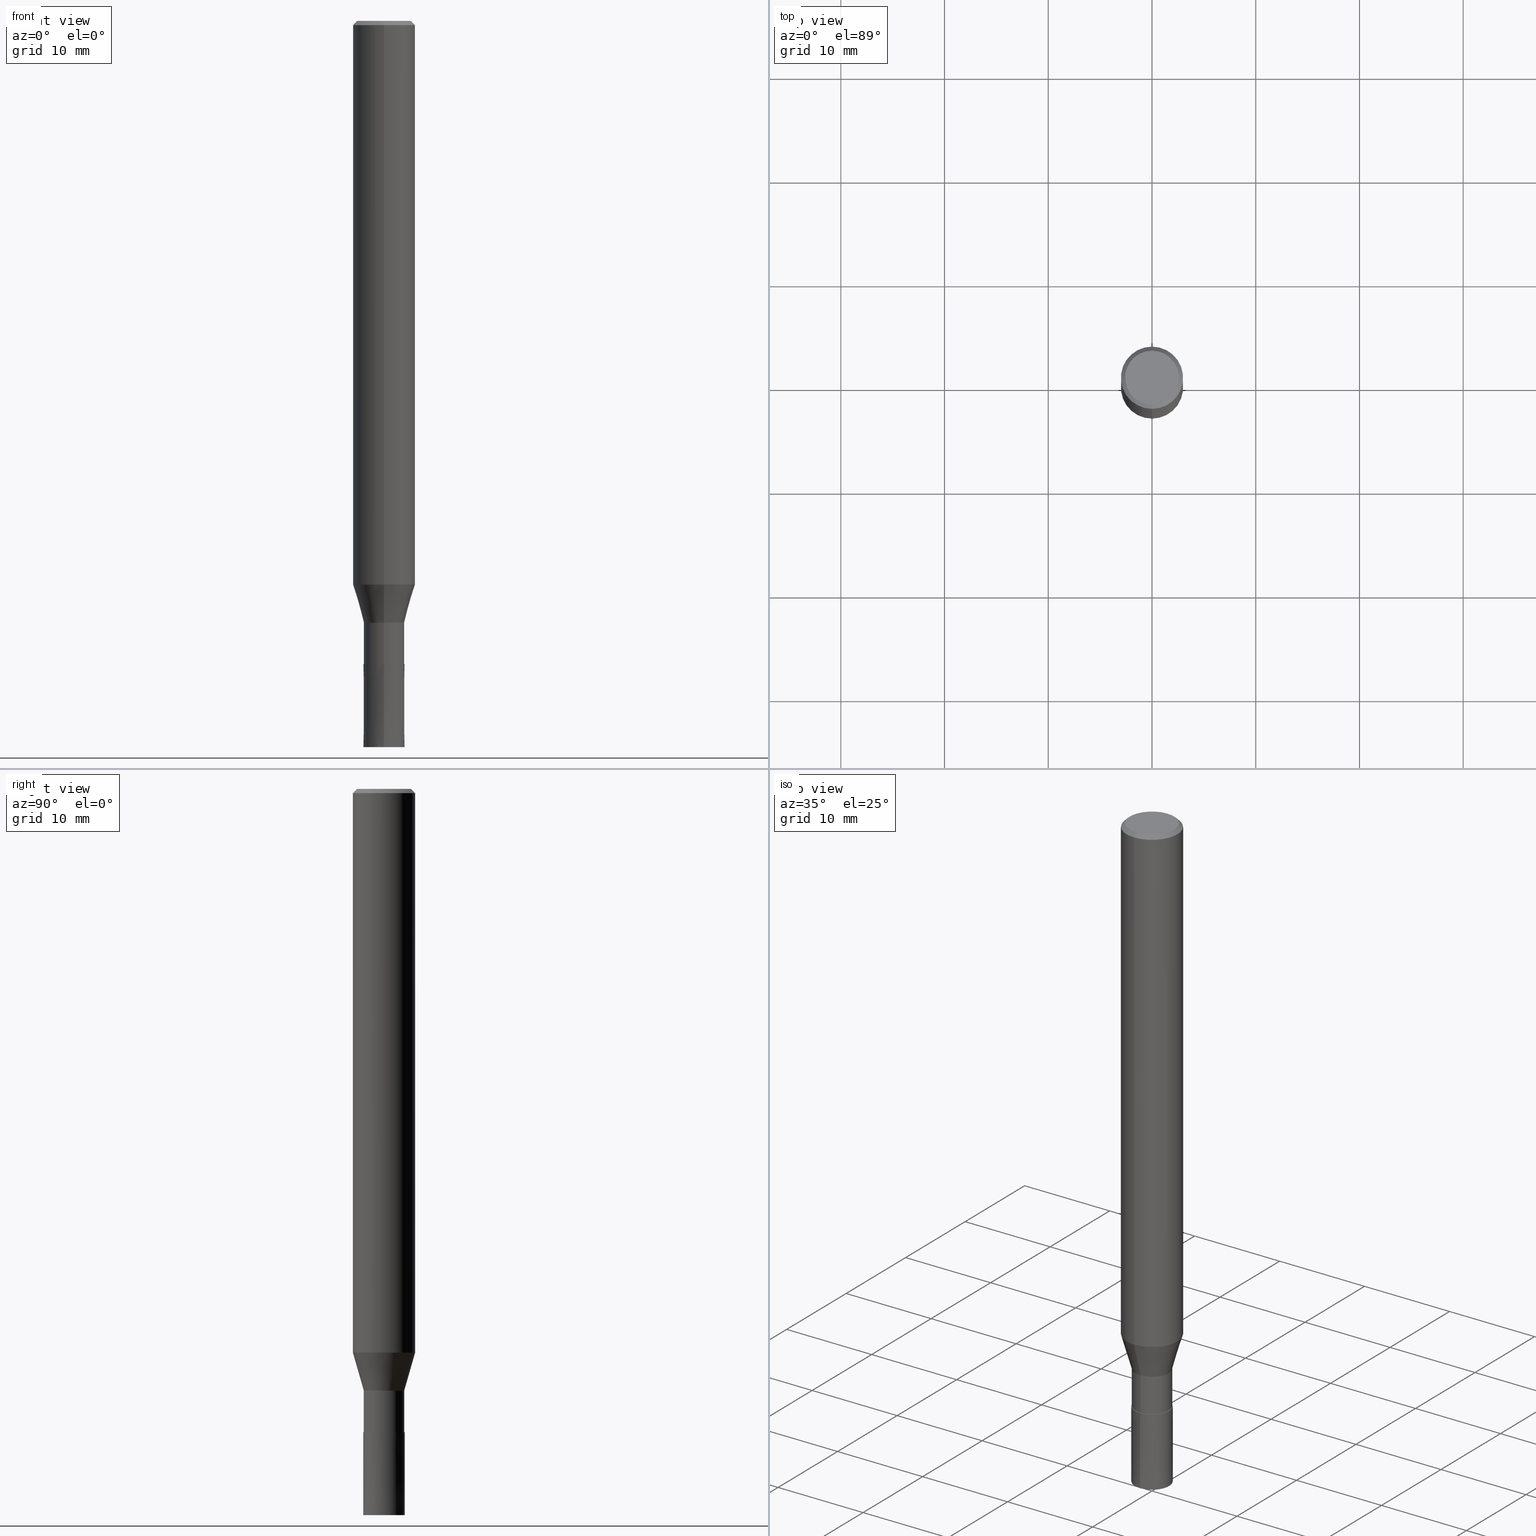
[diagram: canonical four-view strip — front | top / right | iso, engineering-drawing reading convention]
A machine part, canonical four-view strip (front | top / right | iso — engineering-drawing reading convention). The complete STEP part file that produces these views, byte-faithful:
ISO-10303-21;
HEADER;
FILE_DESCRIPTION(('no description'),'unknown implementation level');
FILE_NAME('DLC-AZS3040-120-Huellk.stp','  ',('CIMSOURCE GmbH'),('CADClick - KiM GmbH - www.kimweb.de'),'unknown preprocess','ACIS','unknown authorization');
FILE_SCHEMA(('automotive_design'));
ENDSEC;
DATA;
#1=MECHANICAL_DESIGN_GEOMETRIC_PRESENTATION_REPRESENTATION(' ',(#14,#15,#16,#17,#18,#19,#20,#21,#22,#23,#24,#25,#26,#27,#28,#29,#30,#31,#32,#33,#34,#35,#36,#37,#38,#39,#40,#41,#42,#43,#44,#45,#46,#47,#48,#49,#50,#51,#52,#53,#54,#55,#56,#57,#58,#59,#60,#61,#62,#63,#64,#65,#66,#67,#68,#69,#70,#71,#72),#10);
#2=PRODUCT_DEFINITION_CONTEXT('',#73,'design');
#3=APPLICATION_PROTOCOL_DEFINITION('INTERNATIONAL STANDARD','automotive_design',1994,#73);
#4=PRODUCT_CATEGORY_RELATIONSHIP('NONE','NONE',#74,#75);
#5=SHAPE_DEFINITION_REPRESENTATION(#76,#77);
#6=PRODUCT_DEFINITION_CONTEXT('',#78,'design');
#7=APPLICATION_PROTOCOL_DEFINITION('INTERNATIONAL STANDARD','automotive_design',1994,#78);
#8=PRODUCT_CATEGORY_RELATIONSHIP('NONE','NONE',#79,#80);
#9=SHAPE_DEFINITION_REPRESENTATION(#81,#82);
#10= (GEOMETRIC_REPRESENTATION_CONTEXT(3)GLOBAL_UNCERTAINTY_ASSIGNED_CONTEXT((#85))GLOBAL_UNIT_ASSIGNED_CONTEXT((#87,#88,#89))REPRESENTATION_CONTEXT('NONE','WORKSPACE'));
#14=STYLED_ITEM('',(#91),#92);
#15=STYLED_ITEM('',(#93),#94);
#16=STYLED_ITEM('',(#95),#96);
#17=STYLED_ITEM('',(#97),#98);
#18=STYLED_ITEM('',(#99),#100);
#19=STYLED_ITEM('',(#101),#102);
#20=STYLED_ITEM('',(#103),#104);
#21=STYLED_ITEM('',(#105),#106);
#22=STYLED_ITEM('',(#107),#108);
#23=STYLED_ITEM('',(#109),#110);
#24=STYLED_ITEM('',(#111),#112);
#25=STYLED_ITEM('',(#113),#114);
#26=STYLED_ITEM('',(#115),#116);
#27=STYLED_ITEM('',(#117),#118);
#28=STYLED_ITEM('',(#119),#120);
#29=STYLED_ITEM('',(#121),#122);
#30=STYLED_ITEM('',(#123),#124);
#31=STYLED_ITEM('',(#125),#126);
#32=STYLED_ITEM('',(#127),#128);
#33=STYLED_ITEM('',(#129),#130);
#34=STYLED_ITEM('',(#131),#132);
#35=STYLED_ITEM('',(#133),#134);
#36=STYLED_ITEM('',(#135),#136);
#37=STYLED_ITEM('',(#137),#138);
#38=STYLED_ITEM('',(#139),#140);
#39=STYLED_ITEM('',(#141),#142);
#40=STYLED_ITEM('',(#143),#144);
#41=STYLED_ITEM('',(#145),#146);
#42=STYLED_ITEM('',(#147),#148);
#43=STYLED_ITEM('',(#149),#150);
#44=STYLED_ITEM('',(#151),#152);
#45=STYLED_ITEM('',(#153),#154);
#46=STYLED_ITEM('',(#155),#156);
#47=STYLED_ITEM('',(#157),#158);
#48=STYLED_ITEM('',(#159),#160);
#49=STYLED_ITEM('',(#161),#162);
#50=STYLED_ITEM('',(#163),#164);
#51=STYLED_ITEM('',(#165),#166);
#52=STYLED_ITEM('',(#167),#168);
#53=STYLED_ITEM('',(#169),#170);
#54=STYLED_ITEM('',(#171),#172);
#55=STYLED_ITEM('',(#173),#174);
#56=STYLED_ITEM('',(#175),#176);
#57=STYLED_ITEM('',(#177),#178);
#58=STYLED_ITEM('',(#179),#180);
#59=STYLED_ITEM('',(#181),#182);
#60=STYLED_ITEM('',(#183),#184);
#61=STYLED_ITEM('',(#185),#186);
#62=STYLED_ITEM('',(#187),#188);
#63=STYLED_ITEM('',(#189),#190);
#64=STYLED_ITEM('',(#191),#192);
#65=STYLED_ITEM('',(#193),#194);
#66=STYLED_ITEM('',(#195),#196);
#67=STYLED_ITEM('',(#197),#198);
#68=STYLED_ITEM('',(#199),#200);
#69=STYLED_ITEM('',(#201),#202);
#70=STYLED_ITEM('',(#203),#204);
#71=STYLED_ITEM('',(#205),#206);
#72=STYLED_ITEM('',(#207),#208);
#73=APPLICATION_CONTEXT(' ');
#74=PRODUCT_CATEGORY('part','NONE');
#75=PRODUCT_RELATED_PRODUCT_CATEGORY('detail',' ',(#209));
#76=PRODUCT_DEFINITION_SHAPE('NONE','NONE',#210);
#77=ADVANCED_BREP_SHAPE_REPRESENTATION('1',(#134,#211),#10);
#78=APPLICATION_CONTEXT(' ');
#79=PRODUCT_CATEGORY('part','NONE');
#80=PRODUCT_RELATED_PRODUCT_CATEGORY('detail',' ',(#212));
#81=PRODUCT_DEFINITION_SHAPE('NONE','NONE',#213);
#82=ADVANCED_BREP_SHAPE_REPRESENTATION('2',(#206,#214),#10);
#85=UNCERTAINTY_MEASURE_WITH_UNIT(LENGTH_MEASURE(1.0E-006),#87,'','');
#87= (CONVERSION_BASED_UNIT('MILLIMETRE',#217)LENGTH_UNIT()NAMED_UNIT(#220));
#88= (NAMED_UNIT(#222)PLANE_ANGLE_UNIT()SI_UNIT($,.RADIAN.));
#89= (NAMED_UNIT(#222)SOLID_ANGLE_UNIT()SI_UNIT($,.STERADIAN.));
#91=PRESENTATION_STYLE_ASSIGNMENT((#228));
#92=VERTEX_POINT('',#229);
#93=PRESENTATION_STYLE_ASSIGNMENT((#230));
#94=VERTEX_POINT('',#231);
#95=PRESENTATION_STYLE_ASSIGNMENT((#232));
#96=EDGE_CURVE('',#182,#110,#233,.T.);
#97=PRESENTATION_STYLE_ASSIGNMENT((#234));
#98=EDGE_CURVE('',#142,#146,#235,.T.);
#99=PRESENTATION_STYLE_ASSIGNMENT((#236));
#100=EDGE_CURVE('',#194,#168,#237,.T.);
#101=PRESENTATION_STYLE_ASSIGNMENT((#238));
#102=VERTEX_POINT('',#239);
#103=PRESENTATION_STYLE_ASSIGNMENT((#240));
#104=EDGE_CURVE('',#168,#110,#241,.T.);
#105=PRESENTATION_STYLE_ASSIGNMENT((#242));
#106=ADVANCED_FACE('',(#243,#244),#245,.T.);
#107=PRESENTATION_STYLE_ASSIGNMENT((#246));
#108=ADVANCED_FACE('',(#247),#248,.T.);
#109=PRESENTATION_STYLE_ASSIGNMENT((#249));
#110=VERTEX_POINT('',#250);
#111=PRESENTATION_STYLE_ASSIGNMENT((#251));
#112=EDGE_CURVE('',#92,#146,#252,.T.);
#113=PRESENTATION_STYLE_ASSIGNMENT((#253));
#114=EDGE_CURVE('',#160,#142,#254,.T.);
#115=PRESENTATION_STYLE_ASSIGNMENT((#255));
#116=ADVANCED_FACE('',(#256),#257,.T.);
#117=PRESENTATION_STYLE_ASSIGNMENT((#258));
#118=ADVANCED_FACE('',(#259),#260,.T.);
#119=PRESENTATION_STYLE_ASSIGNMENT((#261));
#120=EDGE_CURVE('',#94,#184,#262,.T.);
#121=PRESENTATION_STYLE_ASSIGNMENT((#263));
#122=EDGE_CURVE('',#170,#160,#264,.T.);
#123=PRESENTATION_STYLE_ASSIGNMENT((#265));
#124=ADVANCED_FACE('',(#266),#267,.T.);
#125=PRESENTATION_STYLE_ASSIGNMENT((#268));
#126=EDGE_CURVE('',#110,#182,#269,.T.);
#127=PRESENTATION_STYLE_ASSIGNMENT((#270));
#128=ADVANCED_FACE('',(#271),#272,.T.);
#129=PRESENTATION_STYLE_ASSIGNMENT((#273));
#130=ADVANCED_FACE('',(#274),#275,.T.);
#131=PRESENTATION_STYLE_ASSIGNMENT((#276));
#132=EDGE_CURVE('',#138,#170,#277,.T.);
#133=PRESENTATION_STYLE_ASSIGNMENT((#278));
#134=MANIFOLD_SOLID_BREP('1',#279);
#135=PRESENTATION_STYLE_ASSIGNMENT((#280));
#136=EDGE_CURVE('',#102,#152,#281,.T.);
#137=PRESENTATION_STYLE_ASSIGNMENT((#282));
#138=VERTEX_POINT('',#283);
#139=PRESENTATION_STYLE_ASSIGNMENT((#284));
#140=EDGE_CURVE('',#150,#148,#285,.T.);
#141=PRESENTATION_STYLE_ASSIGNMENT((#286));
#142=VERTEX_POINT('',#287);
#143=PRESENTATION_STYLE_ASSIGNMENT((#288));
#144=EDGE_CURVE('',#150,#152,#289,.T.);
#145=PRESENTATION_STYLE_ASSIGNMENT((#290));
#146=VERTEX_POINT('',#291);
#147=PRESENTATION_STYLE_ASSIGNMENT((#292));
#148=VERTEX_POINT('',#293);
#149=PRESENTATION_STYLE_ASSIGNMENT((#294));
#150=VERTEX_POINT('',#295);
#151=PRESENTATION_STYLE_ASSIGNMENT((#296));
#152=VERTEX_POINT('',#297);
#153=PRESENTATION_STYLE_ASSIGNMENT((#298));
#154=EDGE_CURVE('',#184,#94,#299,.T.);
#155=PRESENTATION_STYLE_ASSIGNMENT((#300));
#156=EDGE_CURVE('',#148,#94,#301,.T.);
#157=PRESENTATION_STYLE_ASSIGNMENT((#302));
#158=ADVANCED_FACE('',(#303),#304,.T.);
#159=PRESENTATION_STYLE_ASSIGNMENT((#305));
#160=VERTEX_POINT('',#306);
#161=PRESENTATION_STYLE_ASSIGNMENT((#307));
#162=ADVANCED_FACE('',(#308),#309,.T.);
#163=PRESENTATION_STYLE_ASSIGNMENT((#310));
#164=EDGE_CURVE('',#92,#138,#311,.T.);
#165=PRESENTATION_STYLE_ASSIGNMENT((#312));
#166=EDGE_CURVE('',#184,#102,#313,.T.);
#167=PRESENTATION_STYLE_ASSIGNMENT((#314));
#168=VERTEX_POINT('',#315);
#169=PRESENTATION_STYLE_ASSIGNMENT((#316));
#170=VERTEX_POINT('',#317);
#171=PRESENTATION_STYLE_ASSIGNMENT((#318));
#172=ADVANCED_FACE('',(#319),#320,.T.);
#173=PRESENTATION_STYLE_ASSIGNMENT((#321));
#174=EDGE_CURVE('',#102,#148,#322,.T.);
#175=PRESENTATION_STYLE_ASSIGNMENT((#323));
#176=EDGE_CURVE('',#182,#194,#324,.T.);
#177=PRESENTATION_STYLE_ASSIGNMENT((#325));
#178=EDGE_CURVE('',#148,#102,#326,.T.);
#179=PRESENTATION_STYLE_ASSIGNMENT((#327));
#180=EDGE_CURVE('',#138,#142,#328,.T.);
#181=PRESENTATION_STYLE_ASSIGNMENT((#329));
#182=VERTEX_POINT('',#330);
#183=PRESENTATION_STYLE_ASSIGNMENT((#331));
#184=VERTEX_POINT('',#332);
#185=PRESENTATION_STYLE_ASSIGNMENT((#333));
#186=EDGE_CURVE('',#142,#138,#334,.T.);
#187=PRESENTATION_STYLE_ASSIGNMENT((#335));
#188=ADVANCED_FACE('',(#336),#337,.T.);
#189=PRESENTATION_STYLE_ASSIGNMENT((#338));
#190=ADVANCED_FACE('',(#339),#340,.T.);
#191=PRESENTATION_STYLE_ASSIGNMENT((#341));
#192=ADVANCED_FACE('',(#342),#343,.T.);
#193=PRESENTATION_STYLE_ASSIGNMENT((#344));
#194=VERTEX_POINT('',#345);
#195=PRESENTATION_STYLE_ASSIGNMENT((#346));
#196=EDGE_CURVE('',#160,#170,#347,.T.);
#197=PRESENTATION_STYLE_ASSIGNMENT((#348));
#198=EDGE_CURVE('',#168,#194,#349,.T.);
#199=PRESENTATION_STYLE_ASSIGNMENT((#350));
#200=ADVANCED_FACE('',(#351),#352,.T.);
#201=PRESENTATION_STYLE_ASSIGNMENT((#353));
#202=EDGE_CURVE('',#146,#92,#354,.T.);
#203=PRESENTATION_STYLE_ASSIGNMENT((#355));
#204=ADVANCED_FACE('',(#356),#357,.T.);
#205=PRESENTATION_STYLE_ASSIGNMENT((#358));
#206=MANIFOLD_SOLID_BREP('2',#359);
#207=PRESENTATION_STYLE_ASSIGNMENT((#360));
#208=EDGE_CURVE('',#152,#150,#361,.T.);
#209=PRODUCT('1','1','PART-1-DESC',(#362));
#210=PRODUCT_DEFINITION('NONE','NONE',#363,#2);
#211=AXIS2_PLACEMENT_3D('',#364,#365,#366);
#212=PRODUCT('2','2','PART-2-DESC',(#367));
#213=PRODUCT_DEFINITION('NONE','NONE',#368,#6);
#214=AXIS2_PLACEMENT_3D('',#369,#370,#371);
#217=LENGTH_MEASURE_WITH_UNIT(LENGTH_MEASURE(1.0),#372);
#220=DIMENSIONAL_EXPONENTS(1.0,0.0,0.0,0.0,0.0,0.0,0.0);
#222=DIMENSIONAL_EXPONENTS(0.0,0.0,0.0,0.0,0.0,0.0,0.0);
#228=POINT_STYLE(' ',#373,POSITIVE_LENGTH_MEASURE(1.0E-006),#374);
#229=CARTESIAN_POINT('',(3.67381906146713E-016,-3.0,-54.338));
#230=POINT_STYLE(' ',#375,POSITIVE_LENGTH_MEASURE(1.0E-006),#376);
#231=CARTESIAN_POINT('',(0.0,1.94995,-62.0));
#232=CURVE_STYLE('',#377,POSITIVE_LENGTH_MEASURE(1.0E-006),#378);
#233=CIRCLE('',#379,2.0);
#234=CURVE_STYLE('',#380,POSITIVE_LENGTH_MEASURE(1.0E-006),#381);
#235=LINE('',#382,#383);
#236=CURVE_STYLE('',#384,POSITIVE_LENGTH_MEASURE(1.0E-006),#385);
#237=CIRCLE('',#386,1.9999);
#238=POINT_STYLE(' ',#387,POSITIVE_LENGTH_MEASURE(1.0E-006),#388);
#239=CARTESIAN_POINT('',(2.38792115963595E-016,-1.94995,-58.0));
#240=CURVE_STYLE('',#389,POSITIVE_LENGTH_MEASURE(1.0E-006),#390);
#241=LINE('',#391,#392);
#242=SURFACE_STYLE_USAGE(.BOTH.,#393);
#243=FACE_OUTER_BOUND('',#394,.T.);
#244=FACE_BOUND('',#395,.T.);
#245=PLANE('',#396);
#246=SURFACE_STYLE_USAGE(.BOTH.,#397);
#247=FACE_OUTER_BOUND('',#398,.T.);
#248=PLANE('',#399);
#249=POINT_STYLE(' ',#400,POSITIVE_LENGTH_MEASURE(1.0E-006),#401);
#250=CARTESIAN_POINT('',(0.0,2.0,-70.0));
#251=CURVE_STYLE('',#402,POSITIVE_LENGTH_MEASURE(1.0E-006),#403);
#252=CIRCLE('',#404,3.0);
#253=CURVE_STYLE('',#405,POSITIVE_LENGTH_MEASURE(1.0E-006),#406);
#254=LINE('',#407,#408);
#255=SURFACE_STYLE_USAGE(.BOTH.,#409);
#256=FACE_OUTER_BOUND('',#410,.T.);
#257=PLANE('',#411);
#258=SURFACE_STYLE_USAGE(.BOTH.,#412);
#259=FACE_OUTER_BOUND('',#413,.T.);
#260=PLANE('',#414);
#261=CURVE_STYLE('',#415,POSITIVE_LENGTH_MEASURE(1.0E-006),#416);
#262=CIRCLE('',#417,1.94995);
#263=CURVE_STYLE('',#418,POSITIVE_LENGTH_MEASURE(1.0E-006),#419);
#264=CIRCLE('',#420,2.6);
#265=SURFACE_STYLE_USAGE(.BOTH.,#421);
#266=FACE_OUTER_BOUND('',#422,.T.);
#267=CONICAL_SURFACE('',#423,2.8,0.78539816339745);
#268=CURVE_STYLE('',#424,POSITIVE_LENGTH_MEASURE(1.0E-006),#425);
#269=CIRCLE('',#426,2.0);
#270=SURFACE_STYLE_USAGE(.BOTH.,#427);
#271=FACE_OUTER_BOUND('',#428,.T.);
#272=CYLINDRICAL_SURFACE('',#429,3.0);
#273=SURFACE_STYLE_USAGE(.BOTH.,#430);
#274=FACE_OUTER_BOUND('',#431,.T.);
#275=PLANE('',#432);
#276=CURVE_STYLE('',#433,POSITIVE_LENGTH_MEASURE(1.0E-006),#434);
#277=LINE('',#435,#436);
#278=SURFACE_STYLE_USAGE(.BOTH.,#437);
#279=CLOSED_SHELL('',(#162,#200,#190,#124,#106,#118,#158,#128,#188,#192,#130));
#280=CURVE_STYLE('',#438,POSITIVE_LENGTH_MEASURE(1.0E-006),#439);
#281=LINE('',#440,#441);
#282=POINT_STYLE(' ',#442,POSITIVE_LENGTH_MEASURE(1.0E-006),#443);
#283=CARTESIAN_POINT('',(3.67381906146713E-016,-3.0,-0.399999999999999));
#284=CURVE_STYLE('',#444,POSITIVE_LENGTH_MEASURE(1.0E-006),#445);
#285=LINE('',#446,#447);
#286=POINT_STYLE(' ',#448,POSITIVE_LENGTH_MEASURE(1.0E-006),#449);
#287=CARTESIAN_POINT('',(0.0,3.0,-0.399999999999999));
#288=CURVE_STYLE('',#450,POSITIVE_LENGTH_MEASURE(1.0E-006),#451);
#289=CIRCLE('',#452,2.99995);
#290=POINT_STYLE(' ',#453,POSITIVE_LENGTH_MEASURE(1.0E-006),#454);
#291=CARTESIAN_POINT('',(0.0,3.0,-54.338));
#292=POINT_STYLE(' ',#455,POSITIVE_LENGTH_MEASURE(1.0E-006),#456);
#293=CARTESIAN_POINT('',(0.0,1.94995,-58.0));
#294=POINT_STYLE(' ',#457,POSITIVE_LENGTH_MEASURE(1.0E-006),#458);
#295=CARTESIAN_POINT('',(0.0,2.99995,-54.338));
#296=POINT_STYLE(' ',#459,POSITIVE_LENGTH_MEASURE(1.0E-006),#460);
#297=CARTESIAN_POINT('',(3.67375783114944E-016,-2.99995,-54.338));
#298=CURVE_STYLE('',#461,POSITIVE_LENGTH_MEASURE(1.0E-006),#462);
#299=CIRCLE('',#463,1.94995);
#300=CURVE_STYLE('',#464,POSITIVE_LENGTH_MEASURE(1.0E-006),#465);
#301=LINE('',#466,#467);
#302=SURFACE_STYLE_USAGE(.BOTH.,#468);
#303=FACE_OUTER_BOUND('',#469,.T.);
#304=CONICAL_SURFACE('',#470,2.8,0.78539816339745);
#305=POINT_STYLE(' ',#471,POSITIVE_LENGTH_MEASURE(1.0E-006),#472);
#306=CARTESIAN_POINT('',(0.0,2.6,0.0));
#307=SURFACE_STYLE_USAGE(.BOTH.,#473);
#308=FACE_OUTER_BOUND('',#474,.T.);
#309=CYLINDRICAL_SURFACE('',#475,1.94995);
#310=CURVE_STYLE('',#476,POSITIVE_LENGTH_MEASURE(1.0E-006),#477);
#311=LINE('',#478,#479);
#312=CURVE_STYLE('',#480,POSITIVE_LENGTH_MEASURE(1.0E-006),#481);
#313=LINE('',#482,#483);
#314=POINT_STYLE(' ',#484,POSITIVE_LENGTH_MEASURE(1.0E-006),#485);
#315=CARTESIAN_POINT('',(0.0,1.9999,-62.0));
#316=POINT_STYLE(' ',#486,POSITIVE_LENGTH_MEASURE(1.0E-006),#487);
#317=CARTESIAN_POINT('',(3.18397651993818E-016,-2.6,0.0));
#318=SURFACE_STYLE_USAGE(.BOTH.,#488);
#319=FACE_OUTER_BOUND('',#489,.T.);
#320=CONICAL_SURFACE('',#490,1.99995,1.24999999993476E-005);
#321=CURVE_STYLE('',#491,POSITIVE_LENGTH_MEASURE(1.0E-006),#492);
#322=CIRCLE('',#493,1.94995);
#323=CURVE_STYLE('',#494,POSITIVE_LENGTH_MEASURE(1.0E-006),#495);
#324=LINE('',#496,#497);
#325=CURVE_STYLE('',#498,POSITIVE_LENGTH_MEASURE(1.0E-006),#499);
#326=CIRCLE('',#500,1.94995);
#327=CURVE_STYLE('',#501,POSITIVE_LENGTH_MEASURE(1.0E-006),#502);
#328=CIRCLE('',#503,3.0);
#329=POINT_STYLE(' ',#504,POSITIVE_LENGTH_MEASURE(1.0E-006),#505);
#330=CARTESIAN_POINT('',(2.44921270764475E-016,-2.0,-70.0));
#331=POINT_STYLE(' ',#506,POSITIVE_LENGTH_MEASURE(1.0E-006),#507);
#332=CARTESIAN_POINT('',(2.38792115963594E-016,-1.94995,-62.0));
#333=CURVE_STYLE('',#508,POSITIVE_LENGTH_MEASURE(1.0E-006),#509);
#334=CIRCLE('',#510,3.0);
#335=SURFACE_STYLE_USAGE(.BOTH.,#511);
#336=FACE_OUTER_BOUND('',#512,.T.);
#337=CONICAL_SURFACE('',#513,2.47495,0.279237136194957);
#338=SURFACE_STYLE_USAGE(.BOTH.,#514);
#339=FACE_OUTER_BOUND('',#515,.T.);
#340=CYLINDRICAL_SURFACE('',#516,3.0);
#341=SURFACE_STYLE_USAGE(.BOTH.,#517);
#342=FACE_OUTER_BOUND('',#518,.T.);
#343=CYLINDRICAL_SURFACE('',#519,1.94995);
#344=POINT_STYLE(' ',#520,POSITIVE_LENGTH_MEASURE(1.0E-006),#521);
#345=CARTESIAN_POINT('',(2.44909024700937E-016,-1.9999,-62.0));
#346=CURVE_STYLE('',#522,POSITIVE_LENGTH_MEASURE(1.0E-006),#523);
#347=CIRCLE('',#524,2.6);
#348=CURVE_STYLE('',#525,POSITIVE_LENGTH_MEASURE(1.0E-006),#526);
#349=CIRCLE('',#527,1.9999);
#350=SURFACE_STYLE_USAGE(.BOTH.,#528);
#351=FACE_OUTER_BOUND('',#529,.T.);
#352=CONICAL_SURFACE('',#530,2.47495,0.279237136194957);
#353=CURVE_STYLE('',#531,POSITIVE_LENGTH_MEASURE(1.0E-006),#532);
#354=CIRCLE('',#533,3.0);
#355=SURFACE_STYLE_USAGE(.BOTH.,#534);
#356=FACE_OUTER_BOUND('',#535,.T.);
#357=CONICAL_SURFACE('',#536,1.99995,1.24999999993476E-005);
#358=SURFACE_STYLE_USAGE(.BOTH.,#537);
#359=CLOSED_SHELL('',(#204,#116,#172,#108));
#360=CURVE_STYLE('',#538,POSITIVE_LENGTH_MEASURE(1.0E-006),#539);
#361=CIRCLE('',#540,2.99995);
#362=PRODUCT_CONTEXT('',#73,'mechanical');
#363=PRODUCT_DEFINITION_FORMATION_WITH_SPECIFIED_SOURCE(' ','NONE',#209,.NOT_KNOWN.);
#364=CARTESIAN_POINT('',(0.0,0.0,0.0));
#365=DIRECTION('',(0.0,0.0,1.0));
#366=DIRECTION('',(1.0,0.0,0.0));
#367=PRODUCT_CONTEXT('',#78,'mechanical');
#368=PRODUCT_DEFINITION_FORMATION_WITH_SPECIFIED_SOURCE(' ','NONE',#212,.NOT_KNOWN.);
#369=CARTESIAN_POINT('',(0.0,0.0,0.0));
#370=DIRECTION('',(0.0,0.0,1.0));
#371=DIRECTION('',(1.0,0.0,0.0));
#372= (NAMED_UNIT(#220)LENGTH_UNIT()SI_UNIT(.MILLI.,.METRE.));
#373=PRE_DEFINED_MARKER('');
#374=COLOUR_RGB('',0.498039215803146,0.498039215803146,0.498039215803146);
#375=PRE_DEFINED_MARKER('');
#376=COLOUR_RGB('',0.498039215803146,0.498039215803146,0.498039215803146);
#377=DRAUGHTING_PRE_DEFINED_CURVE_FONT('continuous');
#378=COLOUR_RGB('',0.800000011920929,0.800000011920929,0.800000011920929);
#379=AXIS2_PLACEMENT_3D('',#542,#543,#544);
#380=DRAUGHTING_PRE_DEFINED_CURVE_FONT('continuous');
#381=COLOUR_RGB('',0.498039215803146,0.498039215803146,0.498039215803146);
#382=CARTESIAN_POINT('',(-3.67381906146713E-016,3.0,-27.369));
#383=VECTOR('',#545,1.0);
#384=DRAUGHTING_PRE_DEFINED_CURVE_FONT('continuous');
#385=COLOUR_RGB('',0.800000011920929,0.800000011920929,0.800000011920929);
#386=AXIS2_PLACEMENT_3D('',#546,#547,#548);
#387=PRE_DEFINED_MARKER('');
#388=COLOUR_RGB('',0.498039215803146,0.498039215803146,0.498039215803146);
#389=DRAUGHTING_PRE_DEFINED_CURVE_FONT('continuous');
#390=COLOUR_RGB('',0.800000011920929,0.800000011920929,0.800000011920929);
#391=CARTESIAN_POINT('',(-2.44915147732706E-016,1.99995,-66.0));
#392=VECTOR('',#549,1.0);
#393=SURFACE_SIDE_STYLE('',(#550));
#394=EDGE_LOOP('',(#551,#552));
#395=EDGE_LOOP('',(#553,#554));
#396=AXIS2_PLACEMENT_3D('',#555,#556,#557);
#397=SURFACE_SIDE_STYLE('',(#558));
#398=EDGE_LOOP('',(#559,#560));
#399=AXIS2_PLACEMENT_3D('',#561,#562,#563);
#400=PRE_DEFINED_MARKER('');
#401=COLOUR_RGB('',0.800000011920929,0.800000011920929,0.800000011920929);
#402=DRAUGHTING_PRE_DEFINED_CURVE_FONT('continuous');
#403=COLOUR_RGB('',0.498039215803146,0.498039215803146,0.498039215803146);
#404=AXIS2_PLACEMENT_3D('',#564,#565,#566);
#405=DRAUGHTING_PRE_DEFINED_CURVE_FONT('continuous');
#406=COLOUR_RGB('',0.498039215803146,0.498039215803146,0.498039215803146);
#407=CARTESIAN_POINT('',(-3.42889779070266E-016,2.8,-0.200000000000003));
#408=VECTOR('',#567,1.0);
#409=SURFACE_SIDE_STYLE('',(#568));
#410=EDGE_LOOP('',(#569,#570));
#411=AXIS2_PLACEMENT_3D('',#571,#572,#573);
#412=SURFACE_SIDE_STYLE('',(#574));
#413=EDGE_LOOP('',(#575,#576));
#414=AXIS2_PLACEMENT_3D('',#577,#578,#579);
#415=DRAUGHTING_PRE_DEFINED_CURVE_FONT('continuous');
#416=COLOUR_RGB('',0.498039215803146,0.498039215803146,0.498039215803146);
#417=AXIS2_PLACEMENT_3D('',#580,#581,#582);
#418=DRAUGHTING_PRE_DEFINED_CURVE_FONT('continuous');
#419=COLOUR_RGB('',0.498039215803146,0.498039215803146,0.498039215803146);
#420=AXIS2_PLACEMENT_3D('',#583,#584,#585);
#421=SURFACE_SIDE_STYLE('',(#586));
#422=EDGE_LOOP('',(#587,#588,#589,#590));
#423=AXIS2_PLACEMENT_3D('',#591,#592,#593);
#424=DRAUGHTING_PRE_DEFINED_CURVE_FONT('continuous');
#425=COLOUR_RGB('',0.800000011920929,0.800000011920929,0.800000011920929);
#426=AXIS2_PLACEMENT_3D('',#594,#595,#596);
#427=SURFACE_SIDE_STYLE('',(#597));
#428=EDGE_LOOP('',(#598,#599,#600,#601));
#429=AXIS2_PLACEMENT_3D('',#602,#603,#604);
#430=SURFACE_SIDE_STYLE('',(#605));
#431=EDGE_LOOP('',(#606,#607));
#432=AXIS2_PLACEMENT_3D('',#608,#609,#610);
#433=DRAUGHTING_PRE_DEFINED_CURVE_FONT('continuous');
#434=COLOUR_RGB('',0.498039215803146,0.498039215803146,0.498039215803146);
#435=CARTESIAN_POINT('',(3.42889779070266E-016,-2.8,-0.200000000000003));
#436=VECTOR('',#611,1.0);
#437=SURFACE_SIDE_STYLE('',(#612));
#438=DRAUGHTING_PRE_DEFINED_CURVE_FONT('continuous');
#439=COLOUR_RGB('',0.498039215803146,0.498039215803146,0.498039215803146);
#440=CARTESIAN_POINT('',(3.03083949539269E-016,-2.47495,-56.169));
#441=VECTOR('',#613,1.0);
#442=PRE_DEFINED_MARKER('');
#443=COLOUR_RGB('',0.498039215803146,0.498039215803146,0.498039215803146);
#444=DRAUGHTING_PRE_DEFINED_CURVE_FONT('continuous');
#445=COLOUR_RGB('',0.498039215803146,0.498039215803146,0.498039215803146);
#446=CARTESIAN_POINT('',(-3.03083949539269E-016,2.47495,-56.169));
#447=VECTOR('',#614,1.0);
#448=PRE_DEFINED_MARKER('');
#449=COLOUR_RGB('',0.498039215803146,0.498039215803146,0.498039215803146);
#450=DRAUGHTING_PRE_DEFINED_CURVE_FONT('continuous');
#451=COLOUR_RGB('',0.498039215803146,0.498039215803146,0.498039215803146);
#452=AXIS2_PLACEMENT_3D('',#615,#616,#617);
#453=PRE_DEFINED_MARKER('');
#454=COLOUR_RGB('',0.498039215803146,0.498039215803146,0.498039215803146);
#455=PRE_DEFINED_MARKER('');
#456=COLOUR_RGB('',0.498039215803146,0.498039215803146,0.498039215803146);
#457=PRE_DEFINED_MARKER('');
#458=COLOUR_RGB('',0.498039215803146,0.498039215803146,0.498039215803146);
#459=PRE_DEFINED_MARKER('');
#460=COLOUR_RGB('',0.498039215803146,0.498039215803146,0.498039215803146);
#461=DRAUGHTING_PRE_DEFINED_CURVE_FONT('continuous');
#462=COLOUR_RGB('',0.498039215803146,0.498039215803146,0.498039215803146);
#463=AXIS2_PLACEMENT_3D('',#618,#619,#620);
#464=DRAUGHTING_PRE_DEFINED_CURVE_FONT('continuous');
#465=COLOUR_RGB('',0.498039215803146,0.498039215803146,0.498039215803146);
#466=CARTESIAN_POINT('',(-2.38792115963594E-016,1.94995,-60.0));
#467=VECTOR('',#621,1.0);
#468=SURFACE_SIDE_STYLE('',(#622));
#469=EDGE_LOOP('',(#623,#624,#625,#626));
#470=AXIS2_PLACEMENT_3D('',#627,#628,#629);
#471=PRE_DEFINED_MARKER('');
#472=COLOUR_RGB('',0.498039215803146,0.498039215803146,0.498039215803146);
#473=SURFACE_SIDE_STYLE('',(#630));
#474=EDGE_LOOP('',(#631,#632,#633,#634));
#475=AXIS2_PLACEMENT_3D('',#635,#636,#637);
#476=DRAUGHTING_PRE_DEFINED_CURVE_FONT('continuous');
#477=COLOUR_RGB('',0.498039215803146,0.498039215803146,0.498039215803146);
#478=CARTESIAN_POINT('',(3.67381906146713E-016,-3.0,-27.369));
#479=VECTOR('',#638,1.0);
#480=DRAUGHTING_PRE_DEFINED_CURVE_FONT('continuous');
#481=COLOUR_RGB('',0.498039215803146,0.498039215803146,0.498039215803146);
#482=CARTESIAN_POINT('',(2.38792115963594E-016,-1.94995,-60.0));
#483=VECTOR('',#639,1.0);
#484=PRE_DEFINED_MARKER('');
#485=COLOUR_RGB('',0.800000011920929,0.800000011920929,0.800000011920929);
#486=PRE_DEFINED_MARKER('');
#487=COLOUR_RGB('',0.498039215803146,0.498039215803146,0.498039215803146);
#488=SURFACE_SIDE_STYLE('',(#640));
#489=EDGE_LOOP('',(#641,#642,#643,#644));
#490=AXIS2_PLACEMENT_3D('',#645,#646,#647);
#491=DRAUGHTING_PRE_DEFINED_CURVE_FONT('continuous');
#492=COLOUR_RGB('',0.498039215803146,0.498039215803146,0.498039215803146);
#493=AXIS2_PLACEMENT_3D('',#648,#649,#650);
#494=DRAUGHTING_PRE_DEFINED_CURVE_FONT('continuous');
#495=COLOUR_RGB('',0.800000011920929,0.800000011920929,0.800000011920929);
#496=CARTESIAN_POINT('',(2.44915147732706E-016,-1.99995,-66.0));
#497=VECTOR('',#651,1.0);
#498=DRAUGHTING_PRE_DEFINED_CURVE_FONT('continuous');
#499=COLOUR_RGB('',0.498039215803146,0.498039215803146,0.498039215803146);
#500=AXIS2_PLACEMENT_3D('',#652,#653,#654);
#501=DRAUGHTING_PRE_DEFINED_CURVE_FONT('continuous');
#502=COLOUR_RGB('',0.498039215803146,0.498039215803146,0.498039215803146);
#503=AXIS2_PLACEMENT_3D('',#655,#656,#657);
#504=PRE_DEFINED_MARKER('');
#505=COLOUR_RGB('',0.800000011920929,0.800000011920929,0.800000011920929);
#506=PRE_DEFINED_MARKER('');
#507=COLOUR_RGB('',0.498039215803146,0.498039215803146,0.498039215803146);
#508=DRAUGHTING_PRE_DEFINED_CURVE_FONT('continuous');
#509=COLOUR_RGB('',0.498039215803146,0.498039215803146,0.498039215803146);
#510=AXIS2_PLACEMENT_3D('',#658,#659,#660);
#511=SURFACE_SIDE_STYLE('',(#661));
#512=EDGE_LOOP('',(#662,#663,#664,#665));
#513=AXIS2_PLACEMENT_3D('',#666,#667,#668);
#514=SURFACE_SIDE_STYLE('',(#669));
#515=EDGE_LOOP('',(#670,#671,#672,#673));
#516=AXIS2_PLACEMENT_3D('',#674,#675,#676);
#517=SURFACE_SIDE_STYLE('',(#677));
#518=EDGE_LOOP('',(#678,#679,#680,#681));
#519=AXIS2_PLACEMENT_3D('',#682,#683,#684);
#520=PRE_DEFINED_MARKER('');
#521=COLOUR_RGB('',0.800000011920929,0.800000011920929,0.800000011920929);
#522=DRAUGHTING_PRE_DEFINED_CURVE_FONT('continuous');
#523=COLOUR_RGB('',0.498039215803146,0.498039215803146,0.498039215803146);
#524=AXIS2_PLACEMENT_3D('',#685,#686,#687);
#525=DRAUGHTING_PRE_DEFINED_CURVE_FONT('continuous');
#526=COLOUR_RGB('',0.800000011920929,0.800000011920929,0.800000011920929);
#527=AXIS2_PLACEMENT_3D('',#688,#689,#690);
#528=SURFACE_SIDE_STYLE('',(#691));
#529=EDGE_LOOP('',(#692,#693,#694,#695));
#530=AXIS2_PLACEMENT_3D('',#696,#697,#698);
#531=DRAUGHTING_PRE_DEFINED_CURVE_FONT('continuous');
#532=COLOUR_RGB('',0.498039215803146,0.498039215803146,0.498039215803146);
#533=AXIS2_PLACEMENT_3D('',#699,#700,#701);
#534=SURFACE_SIDE_STYLE('',(#702));
#535=EDGE_LOOP('',(#703,#704,#705,#706));
#536=AXIS2_PLACEMENT_3D('',#707,#708,#709);
#537=SURFACE_SIDE_STYLE('',(#710));
#538=DRAUGHTING_PRE_DEFINED_CURVE_FONT('continuous');
#539=COLOUR_RGB('',0.498039215803146,0.498039215803146,0.498039215803146);
#540=AXIS2_PLACEMENT_3D('',#711,#712,#713);
#542=CARTESIAN_POINT('',(0.0,0.0,-70.0));
#543=DIRECTION('',(0.0,0.0,-1.0));
#544=DIRECTION('',(0.0,1.0,0.0));
#545=DIRECTION('',(0.0,0.0,-1.0));
#546=CARTESIAN_POINT('',(0.0,0.0,-62.0));
#547=DIRECTION('',(0.0,0.0,-1.0));
#548=DIRECTION('',(0.0,1.0,0.0));
#549=DIRECTION('',(-1.53075794215821E-021,1.24999999990221E-005,-0.999999999921875));
#550=SURFACE_STYLE_FILL_AREA(#714);
#551=ORIENTED_EDGE('',*,*,#202,.T.);
#552=ORIENTED_EDGE('',*,*,#112,.T.);
#553=ORIENTED_EDGE('',*,*,#144,.F.);
#554=ORIENTED_EDGE('',*,*,#208,.F.);
#555=CARTESIAN_POINT('',(0.0,1.5,-54.338));
#556=DIRECTION('',(0.0,0.0,-1.0));
#557=DIRECTION('',(0.0,1.0,0.0));
#558=SURFACE_STYLE_FILL_AREA(#715);
#559=ORIENTED_EDGE('',*,*,#126,.T.);
#560=ORIENTED_EDGE('',*,*,#96,.T.);
#561=CARTESIAN_POINT('',(0.0,0.9975,-70.0));
#562=DIRECTION('',(0.0,0.0,-1.0));
#563=DIRECTION('',(0.0,1.0,0.0));
#564=CARTESIAN_POINT('',(0.0,0.0,-54.338));
#565=DIRECTION('',(0.0,0.0,-1.0));
#566=DIRECTION('',(0.0,1.0,0.0));
#567=DIRECTION('',(-8.65927457071937E-017,0.707106781186549,-0.707106781186546));
#568=SURFACE_STYLE_FILL_AREA(#716);
#569=ORIENTED_EDGE('',*,*,#198,.F.);
#570=ORIENTED_EDGE('',*,*,#100,.F.);
#571=CARTESIAN_POINT('',(0.0,0.99995,-62.0));
#572=DIRECTION('',(-0.0,0.0,1.0));
#573=DIRECTION('',(0.0,-1.0,0.0));
#574=SURFACE_STYLE_FILL_AREA(#717);
#575=ORIENTED_EDGE('',*,*,#196,.F.);
#576=ORIENTED_EDGE('',*,*,#122,.F.);
#577=CARTESIAN_POINT('',(0.0,1.3,0.0));
#578=DIRECTION('',(-0.0,0.0,1.0));
#579=DIRECTION('',(0.0,-1.0,0.0));
#580=CARTESIAN_POINT('',(0.0,0.0,-62.0));
#581=DIRECTION('',(0.0,0.0,-1.0));
#582=DIRECTION('',(0.0,1.0,0.0));
#583=CARTESIAN_POINT('',(0.0,0.0,0.0));
#584=DIRECTION('',(0.0,0.0,-1.0));
#585=DIRECTION('',(0.0,1.0,0.0));
#586=SURFACE_STYLE_FILL_AREA(#718);
#587=ORIENTED_EDGE('',*,*,#114,.F.);
#588=ORIENTED_EDGE('',*,*,#196,.T.);
#589=ORIENTED_EDGE('',*,*,#132,.F.);
#590=ORIENTED_EDGE('',*,*,#186,.F.);
#591=CARTESIAN_POINT('',(0.0,0.0,-0.200000000000003));
#592=DIRECTION('',(0.0,-0.0,-1.0));
#593=DIRECTION('',(0.0,1.0,0.0));
#594=CARTESIAN_POINT('',(0.0,0.0,-70.0));
#595=DIRECTION('',(0.0,0.0,-1.0));
#596=DIRECTION('',(0.0,1.0,0.0));
#597=SURFACE_STYLE_FILL_AREA(#719);
#598=ORIENTED_EDGE('',*,*,#98,.T.);
#599=ORIENTED_EDGE('',*,*,#112,.F.);
#600=ORIENTED_EDGE('',*,*,#164,.T.);
#601=ORIENTED_EDGE('',*,*,#180,.T.);
#602=CARTESIAN_POINT('',(0.0,0.0,-27.369));
#603=DIRECTION('',(-0.0,-0.0,1.0));
#604=DIRECTION('',(0.0,1.0,0.0));
#605=SURFACE_STYLE_FILL_AREA(#720);
#606=ORIENTED_EDGE('',*,*,#120,.T.);
#607=ORIENTED_EDGE('',*,*,#154,.T.);
#608=CARTESIAN_POINT('',(0.0,0.974975,-62.0));
#609=DIRECTION('',(0.0,0.0,-1.0));
#610=DIRECTION('',(0.0,1.0,0.0));
#611=DIRECTION('',(-8.65927457071937E-017,0.707106781186549,0.707106781186546));
#612=SURFACE_STYLE_FILL_AREA(#721);
#613=DIRECTION('',(3.37528959210736E-017,-0.275622413812571,0.961265980363464));
#614=DIRECTION('',(3.37528959210736E-017,-0.275622413812571,-0.961265980363464));
#615=CARTESIAN_POINT('',(0.0,0.0,-54.338));
#616=DIRECTION('',(0.0,0.0,-1.0));
#617=DIRECTION('',(0.0,1.0,0.0));
#618=CARTESIAN_POINT('',(0.0,0.0,-62.0));
#619=DIRECTION('',(0.0,0.0,-1.0));
#620=DIRECTION('',(0.0,1.0,0.0));
#621=DIRECTION('',(0.0,0.0,-1.0));
#622=SURFACE_STYLE_FILL_AREA(#722);
#623=ORIENTED_EDGE('',*,*,#114,.T.);
#624=ORIENTED_EDGE('',*,*,#180,.F.);
#625=ORIENTED_EDGE('',*,*,#132,.T.);
#626=ORIENTED_EDGE('',*,*,#122,.T.);
#627=CARTESIAN_POINT('',(0.0,0.0,-0.200000000000003));
#628=DIRECTION('',(0.0,-0.0,-1.0));
#629=DIRECTION('',(0.0,1.0,0.0));
#630=SURFACE_STYLE_FILL_AREA(#723);
#631=ORIENTED_EDGE('',*,*,#156,.F.);
#632=ORIENTED_EDGE('',*,*,#178,.T.);
#633=ORIENTED_EDGE('',*,*,#166,.F.);
#634=ORIENTED_EDGE('',*,*,#120,.F.);
#635=CARTESIAN_POINT('',(0.0,0.0,-60.0));
#636=DIRECTION('',(-0.0,-0.0,1.0));
#637=DIRECTION('',(0.0,1.0,0.0));
#638=DIRECTION('',(-0.0,-0.0,1.0));
#639=DIRECTION('',(-0.0,-0.0,1.0));
#640=SURFACE_STYLE_FILL_AREA(#724);
#641=ORIENTED_EDGE('',*,*,#104,.T.);
#642=ORIENTED_EDGE('',*,*,#96,.F.);
#643=ORIENTED_EDGE('',*,*,#176,.T.);
#644=ORIENTED_EDGE('',*,*,#100,.T.);
#645=CARTESIAN_POINT('',(0.0,0.0,-66.0));
#646=DIRECTION('',(0.0,-0.0,-1.0));
#647=DIRECTION('',(0.0,1.0,0.0));
#648=CARTESIAN_POINT('',(0.0,0.0,-58.0));
#649=DIRECTION('',(0.0,0.0,-1.0));
#650=DIRECTION('',(0.0,1.0,0.0));
#651=DIRECTION('',(-1.53075794215821E-021,1.24999999990221E-005,0.999999999921875));
#652=CARTESIAN_POINT('',(0.0,0.0,-58.0));
#653=DIRECTION('',(0.0,0.0,-1.0));
#654=DIRECTION('',(0.0,1.0,0.0));
#655=CARTESIAN_POINT('',(0.0,0.0,-0.399999999999999));
#656=DIRECTION('',(0.0,0.0,-1.0));
#657=DIRECTION('',(0.0,1.0,0.0));
#658=CARTESIAN_POINT('',(0.0,0.0,-0.399999999999999));
#659=DIRECTION('',(0.0,0.0,-1.0));
#660=DIRECTION('',(0.0,1.0,0.0));
#661=SURFACE_STYLE_FILL_AREA(#725);
#662=ORIENTED_EDGE('',*,*,#140,.T.);
#663=ORIENTED_EDGE('',*,*,#174,.F.);
#664=ORIENTED_EDGE('',*,*,#136,.T.);
#665=ORIENTED_EDGE('',*,*,#208,.T.);
#666=CARTESIAN_POINT('',(0.0,0.0,-56.169));
#667=DIRECTION('',(-0.0,-0.0,1.0));
#668=DIRECTION('',(0.0,1.0,0.0));
#669=SURFACE_STYLE_FILL_AREA(#726);
#670=ORIENTED_EDGE('',*,*,#98,.F.);
#671=ORIENTED_EDGE('',*,*,#186,.T.);
#672=ORIENTED_EDGE('',*,*,#164,.F.);
#673=ORIENTED_EDGE('',*,*,#202,.F.);
#674=CARTESIAN_POINT('',(0.0,0.0,-27.369));
#675=DIRECTION('',(-0.0,-0.0,1.0));
#676=DIRECTION('',(0.0,1.0,0.0));
#677=SURFACE_STYLE_FILL_AREA(#727);
#678=ORIENTED_EDGE('',*,*,#156,.T.);
#679=ORIENTED_EDGE('',*,*,#154,.F.);
#680=ORIENTED_EDGE('',*,*,#166,.T.);
#681=ORIENTED_EDGE('',*,*,#174,.T.);
#682=CARTESIAN_POINT('',(0.0,0.0,-60.0));
#683=DIRECTION('',(-0.0,-0.0,1.0));
#684=DIRECTION('',(0.0,1.0,0.0));
#685=CARTESIAN_POINT('',(0.0,0.0,0.0));
#686=DIRECTION('',(0.0,0.0,-1.0));
#687=DIRECTION('',(0.0,1.0,0.0));
#688=CARTESIAN_POINT('',(0.0,0.0,-62.0));
#689=DIRECTION('',(0.0,0.0,-1.0));
#690=DIRECTION('',(0.0,1.0,0.0));
#691=SURFACE_STYLE_FILL_AREA(#728);
#692=ORIENTED_EDGE('',*,*,#140,.F.);
#693=ORIENTED_EDGE('',*,*,#144,.T.);
#694=ORIENTED_EDGE('',*,*,#136,.F.);
#695=ORIENTED_EDGE('',*,*,#178,.F.);
#696=CARTESIAN_POINT('',(0.0,0.0,-56.169));
#697=DIRECTION('',(-0.0,-0.0,1.0));
#698=DIRECTION('',(0.0,1.0,0.0));
#699=CARTESIAN_POINT('',(0.0,0.0,-54.338));
#700=DIRECTION('',(0.0,0.0,-1.0));
#701=DIRECTION('',(0.0,1.0,0.0));
#702=SURFACE_STYLE_FILL_AREA(#729);
#703=ORIENTED_EDGE('',*,*,#104,.F.);
#704=ORIENTED_EDGE('',*,*,#198,.T.);
#705=ORIENTED_EDGE('',*,*,#176,.F.);
#706=ORIENTED_EDGE('',*,*,#126,.F.);
#707=CARTESIAN_POINT('',(0.0,0.0,-66.0));
#708=DIRECTION('',(0.0,-0.0,-1.0));
#709=DIRECTION('',(0.0,1.0,0.0));
#710=SURFACE_STYLE_FILL_AREA(#730);
#711=CARTESIAN_POINT('',(0.0,0.0,-54.338));
#712=DIRECTION('',(0.0,0.0,-1.0));
#713=DIRECTION('',(0.0,1.0,0.0));
#714=FILL_AREA_STYLE('',(#731));
#715=FILL_AREA_STYLE('',(#732));
#716=FILL_AREA_STYLE('',(#733));
#717=FILL_AREA_STYLE('',(#734));
#718=FILL_AREA_STYLE('',(#735));
#719=FILL_AREA_STYLE('',(#736));
#720=FILL_AREA_STYLE('',(#737));
#721=FILL_AREA_STYLE('',(#738));
#722=FILL_AREA_STYLE('',(#739));
#723=FILL_AREA_STYLE('',(#740));
#724=FILL_AREA_STYLE('',(#741));
#725=FILL_AREA_STYLE('',(#742));
#726=FILL_AREA_STYLE('',(#743));
#727=FILL_AREA_STYLE('',(#744));
#728=FILL_AREA_STYLE('',(#745));
#729=FILL_AREA_STYLE('',(#746));
#730=FILL_AREA_STYLE('',(#747));
#731=FILL_AREA_STYLE_COLOUR('',#748);
#732=FILL_AREA_STYLE_COLOUR('',#749);
#733=FILL_AREA_STYLE_COLOUR('',#750);
#734=FILL_AREA_STYLE_COLOUR('',#751);
#735=FILL_AREA_STYLE_COLOUR('',#752);
#736=FILL_AREA_STYLE_COLOUR('',#753);
#737=FILL_AREA_STYLE_COLOUR('',#754);
#738=FILL_AREA_STYLE_COLOUR('',#755);
#739=FILL_AREA_STYLE_COLOUR('',#756);
#740=FILL_AREA_STYLE_COLOUR('',#757);
#741=FILL_AREA_STYLE_COLOUR('',#758);
#742=FILL_AREA_STYLE_COLOUR('',#759);
#743=FILL_AREA_STYLE_COLOUR('',#760);
#744=FILL_AREA_STYLE_COLOUR('',#761);
#745=FILL_AREA_STYLE_COLOUR('',#762);
#746=FILL_AREA_STYLE_COLOUR('',#763);
#747=FILL_AREA_STYLE_COLOUR('',#764);
#748=COLOUR_RGB('',0.498039215803146,0.498039215803146,0.498039215803146);
#749=COLOUR_RGB('',0.800000011920929,0.800000011920929,0.800000011920929);
#750=COLOUR_RGB('',0.800000011920929,0.800000011920929,0.800000011920929);
#751=COLOUR_RGB('',0.498039215803146,0.498039215803146,0.498039215803146);
#752=COLOUR_RGB('',0.498039215803146,0.498039215803146,0.498039215803146);
#753=COLOUR_RGB('',0.498039215803146,0.498039215803146,0.498039215803146);
#754=COLOUR_RGB('',0.498039215803146,0.498039215803146,0.498039215803146);
#755=COLOUR_RGB('',0.498039215803146,0.498039215803146,0.498039215803146);
#756=COLOUR_RGB('',0.498039215803146,0.498039215803146,0.498039215803146);
#757=COLOUR_RGB('',0.498039215803146,0.498039215803146,0.498039215803146);
#758=COLOUR_RGB('',0.800000011920929,0.800000011920929,0.800000011920929);
#759=COLOUR_RGB('',0.498039215803146,0.498039215803146,0.498039215803146);
#760=COLOUR_RGB('',0.498039215803146,0.498039215803146,0.498039215803146);
#761=COLOUR_RGB('',0.498039215803146,0.498039215803146,0.498039215803146);
#762=COLOUR_RGB('',0.498039215803146,0.498039215803146,0.498039215803146);
#763=COLOUR_RGB('',0.800000011920929,0.800000011920929,0.800000011920929);
#764=COLOUR_RGB('',0.800000011920929,0.800000011920929,0.800000011920929);
#765=AXIS2_PLACEMENT_3D('PCS',#766,#767,#768);
#766=CARTESIAN_POINT('',(0.0,0.0,0.0));
#767=DIRECTION('',(0.0,0.0,1.0));
#768=DIRECTION('',(1.0,0.0,0.0));
#769=AXIS2_PLACEMENT_3D('CIP',#770,#771,#772);
#770=CARTESIAN_POINT('',(0.0,0.0,-70.0));
#771=DIRECTION('',(0.0,0.0,1.0));
#772=DIRECTION('',(1.0,0.0,0.0));
#773=AXIS2_PLACEMENT_3D('CRP',#774,#775,#776);
#774=CARTESIAN_POINT('',(-2.0,0.0,-70.0));
#775=DIRECTION('',(0.0,0.0,1.0));
#776=DIRECTION('',(1.0,0.0,0.0));
#777=AXIS2_PLACEMENT_3D('MCS',#778,#779,#780);
#778=CARTESIAN_POINT('',(0.0,0.0,-54.338));
#779=DIRECTION('',(0.0,0.0,1.0));
#780=DIRECTION('',(1.0,0.0,0.0));
#781=CONSTRUCTIVE_GEOMETRY_REPRESENTATION_RELATIONSHIP('coordinate systems',$,#77,#782);
#782=CONSTRUCTIVE_GEOMETRY_REPRESENTATION('coordinate systems',(#765,#769,#773,#777),#10);
ENDSEC;
END-ISO-10303-21;
